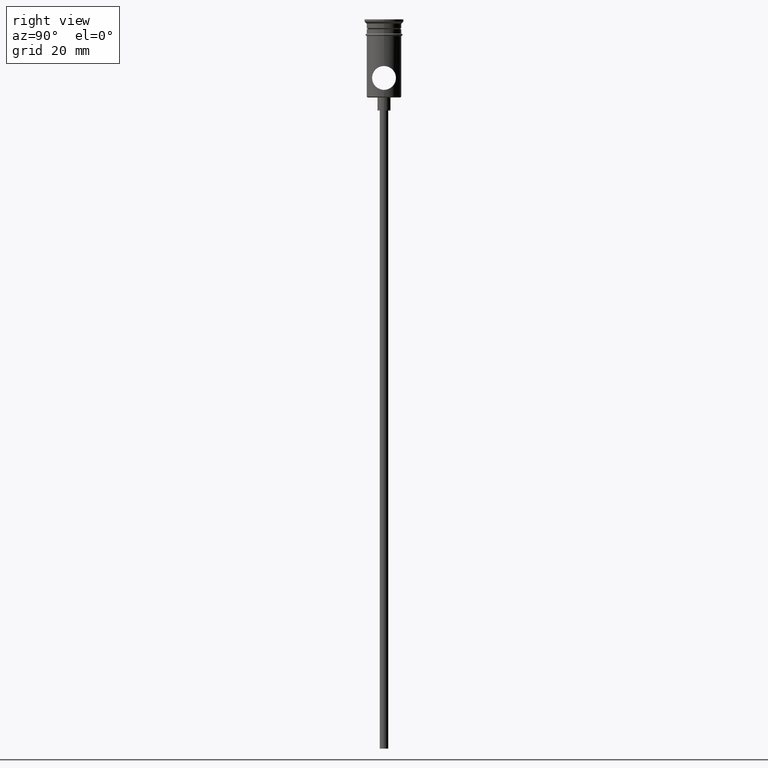
[diagram: clean part render]
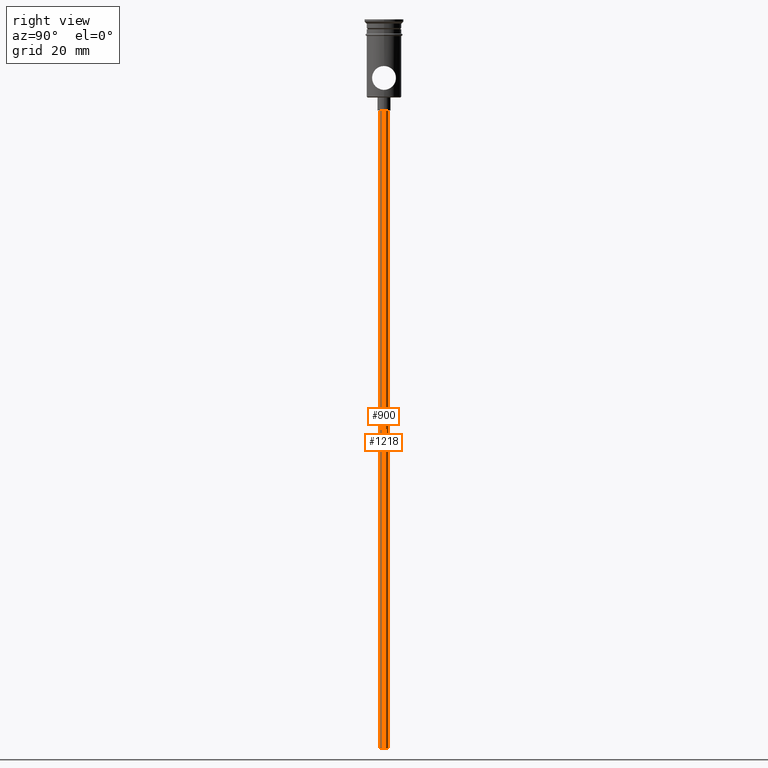
[diagram: same view with one multi-face feature highlighted, each face labeled with its STEP entity id]
A machine part, right view. The highlighted faces form ONE feature: a constant-radius fillet chain: 2 tangent blend faces with common blend radius 1 mm. The faces share edges in the B-rep.
Their STEP definitions:
[1] entity #1218 (Cylinder):
#6 = ORIENTED_EDGE ( 'NONE', *, *, #847, .T. ) ;
#10 = DIRECTION ( 'NONE',  ( -1.000000000000000000, 0.000000000000000000, 0.000000000000000000 ) ) ;
#23 = CARTESIAN_POINT ( 'NONE',  ( 0.000000000000000000, 0.000000000000000000, -167.9999999999999716 ) ) ;
#33 = LINE ( 'NONE', #244, #735 ) ;
#115 = ORIENTED_EDGE ( 'NONE', *, *, #188, .F. ) ;
#118 = VECTOR ( 'NONE', #828, 1000.000000000000000 ) ;
#134 = DIRECTION ( 'NONE',  ( -0.000000000000000000, -0.000000000000000000, 1.000000000000000000 ) ) ;
#136 = EDGE_CURVE ( 'NONE', #534, #461, #33, .T. ) ;
#141 = AXIS2_PLACEMENT_3D ( 'NONE', #666, #463, #10 ) ;
#180 = CARTESIAN_POINT ( 'NONE',  ( 0.9999999999999997780, 0.000000000000000000, -167.9999999999999716 ) ) ;
#183 = LINE ( 'NONE', #1269, #118 ) ;
#188 = EDGE_CURVE ( 'NONE', #1331, #598, #183, .T. ) ;
#231 = CIRCLE ( 'NONE', #141, 0.9999999999999997780 ) ;
#244 = CARTESIAN_POINT ( 'NONE',  ( -0.9999999999999997780, 1.224646799147352961E-16, -167.9999999999999716 ) ) ;
#445 = ORIENTED_EDGE ( 'NONE', *, *, #136, .T. ) ;
#461 = VERTEX_POINT ( 'NONE', #1318 ) ;
#463 = DIRECTION ( 'NONE',  ( 0.000000000000000000, 0.000000000000000000, -1.000000000000000000 ) ) ;
#475 = DIRECTION ( 'NONE',  ( 1.000000000000000000, 0.000000000000000000, 0.000000000000000000 ) ) ;
#534 = VERTEX_POINT ( 'NONE', #820 ) ;
#565 = CYLINDRICAL_SURFACE ( 'NONE', #765, 0.9999999999999997780 ) ;
#598 = VERTEX_POINT ( 'NONE', #807 ) ;
#665 = CARTESIAN_POINT ( 'NONE',  ( 0.000000000000000000, 0.000000000000000000, -167.9999999999999716 ) ) ;
#666 = CARTESIAN_POINT ( 'NONE',  ( 0.000000000000000000, 0.000000000000000000, -20.99999999999999645 ) ) ;
#706 = DIRECTION ( 'NONE',  ( -1.000000000000000000, 0.000000000000000000, 0.000000000000000000 ) ) ;
#707 = EDGE_LOOP ( 'NONE', ( #1003, #445, #6, #115 ) ) ;
#735 = VECTOR ( 'NONE', #134, 1000.000000000000000 ) ;
#765 = AXIS2_PLACEMENT_3D ( 'NONE', #23, #1017, #475 ) ;
#807 = CARTESIAN_POINT ( 'NONE',  ( 0.9999999999999997780, 0.000000000000000000, -20.99999999999999645 ) ) ;
#820 = CARTESIAN_POINT ( 'NONE',  ( -0.9999999999999997780, 1.224646799147352961E-16, -167.9999999999999716 ) ) ;
#828 = DIRECTION ( 'NONE',  ( -0.000000000000000000, -0.000000000000000000, 1.000000000000000000 ) ) ;
#847 = EDGE_CURVE ( 'NONE', #461, #598, #231, .T. ) ;
#1003 = ORIENTED_EDGE ( 'NONE', *, *, #1177, .F. ) ;
#1017 = DIRECTION ( 'NONE',  ( -0.000000000000000000, -0.000000000000000000, 1.000000000000000000 ) ) ;
#1139 = AXIS2_PLACEMENT_3D ( 'NONE', #665, #1330, #706 ) ;
#1177 = EDGE_CURVE ( 'NONE', #534, #1331, #1389, .T. ) ;
#1218 = ADVANCED_FACE ( 'NONE', ( #1307 ), #565, .T. ) ;
#1269 = CARTESIAN_POINT ( 'NONE',  ( 0.9999999999999997780, 0.000000000000000000, -167.9999999999999716 ) ) ;
#1307 = FACE_OUTER_BOUND ( 'NONE', #707, .T. ) ;
#1318 = CARTESIAN_POINT ( 'NONE',  ( -0.9999999999999997780, 1.224646799147352961E-16, -20.99999999999999645 ) ) ;
#1330 = DIRECTION ( 'NONE',  ( 0.000000000000000000, 0.000000000000000000, -1.000000000000000000 ) ) ;
#1331 = VERTEX_POINT ( 'NONE', #180 ) ;
#1389 = CIRCLE ( 'NONE', #1139, 0.9999999999999997780 ) ;
[2] entity #900 (Cylinder):
#33 = LINE ( 'NONE', #244, #735 ) ;
#90 = ORIENTED_EDGE ( 'NONE', *, *, #188, .T. ) ;
#93 = DIRECTION ( 'NONE',  ( 0.000000000000000000, 0.000000000000000000, -1.000000000000000000 ) ) ;
#118 = VECTOR ( 'NONE', #828, 1000.000000000000000 ) ;
#134 = DIRECTION ( 'NONE',  ( -0.000000000000000000, -0.000000000000000000, 1.000000000000000000 ) ) ;
#136 = EDGE_CURVE ( 'NONE', #534, #461, #33, .T. ) ;
#172 = ORIENTED_EDGE ( 'NONE', *, *, #136, .F. ) ;
#180 = CARTESIAN_POINT ( 'NONE',  ( 0.9999999999999997780, 0.000000000000000000, -167.9999999999999716 ) ) ;
#182 = CIRCLE ( 'NONE', #251, 0.9999999999999997780 ) ;
#183 = LINE ( 'NONE', #1269, #118 ) ;
#188 = EDGE_CURVE ( 'NONE', #1331, #598, #183, .T. ) ;
#215 = CARTESIAN_POINT ( 'NONE',  ( 0.000000000000000000, 0.000000000000000000, -167.9999999999999716 ) ) ;
#244 = CARTESIAN_POINT ( 'NONE',  ( -0.9999999999999997780, 1.224646799147352961E-16, -167.9999999999999716 ) ) ;
#251 = AXIS2_PLACEMENT_3D ( 'NONE', #412, #93, #1418 ) ;
#286 = EDGE_CURVE ( 'NONE', #598, #461, #182, .T. ) ;
#412 = CARTESIAN_POINT ( 'NONE',  ( 0.000000000000000000, 0.000000000000000000, -20.99999999999999645 ) ) ;
#461 = VERTEX_POINT ( 'NONE', #1318 ) ;
#513 = CIRCLE ( 'NONE', #1295, 0.9999999999999997780 ) ;
#534 = VERTEX_POINT ( 'NONE', #820 ) ;
#571 = EDGE_CURVE ( 'NONE', #1331, #534, #513, .T. ) ;
#598 = VERTEX_POINT ( 'NONE', #807 ) ;
#661 = DIRECTION ( 'NONE',  ( -0.000000000000000000, -0.000000000000000000, 1.000000000000000000 ) ) ;
#735 = VECTOR ( 'NONE', #134, 1000.000000000000000 ) ;
#795 = DIRECTION ( 'NONE',  ( -1.000000000000000000, 0.000000000000000000, 0.000000000000000000 ) ) ;
#802 = EDGE_LOOP ( 'NONE', ( #172, #914, #90, #1305 ) ) ;
#807 = CARTESIAN_POINT ( 'NONE',  ( 0.9999999999999997780, 0.000000000000000000, -20.99999999999999645 ) ) ;
#820 = CARTESIAN_POINT ( 'NONE',  ( -0.9999999999999997780, 1.224646799147352961E-16, -167.9999999999999716 ) ) ;
#828 = DIRECTION ( 'NONE',  ( -0.000000000000000000, -0.000000000000000000, 1.000000000000000000 ) ) ;
#900 = ADVANCED_FACE ( 'NONE', ( #1409 ), #1189, .T. ) ;
#914 = ORIENTED_EDGE ( 'NONE', *, *, #571, .F. ) ;
#986 = AXIS2_PLACEMENT_3D ( 'NONE', #215, #661, #1301 ) ;
#1109 = CARTESIAN_POINT ( 'NONE',  ( 0.000000000000000000, 0.000000000000000000, -167.9999999999999716 ) ) ;
#1189 = CYLINDRICAL_SURFACE ( 'NONE', #986, 0.9999999999999997780 ) ;
#1269 = CARTESIAN_POINT ( 'NONE',  ( 0.9999999999999997780, 0.000000000000000000, -167.9999999999999716 ) ) ;
#1295 = AXIS2_PLACEMENT_3D ( 'NONE', #1109, #1322, #795 ) ;
#1301 = DIRECTION ( 'NONE',  ( 1.000000000000000000, 0.000000000000000000, 0.000000000000000000 ) ) ;
#1305 = ORIENTED_EDGE ( 'NONE', *, *, #286, .T. ) ;
#1318 = CARTESIAN_POINT ( 'NONE',  ( -0.9999999999999997780, 1.224646799147352961E-16, -20.99999999999999645 ) ) ;
#1322 = DIRECTION ( 'NONE',  ( 0.000000000000000000, 0.000000000000000000, -1.000000000000000000 ) ) ;
#1331 = VERTEX_POINT ( 'NONE', #180 ) ;
#1409 = FACE_OUTER_BOUND ( 'NONE', #802, .T. ) ;
#1418 = DIRECTION ( 'NONE',  ( -1.000000000000000000, 0.000000000000000000, 0.000000000000000000 ) ) ;